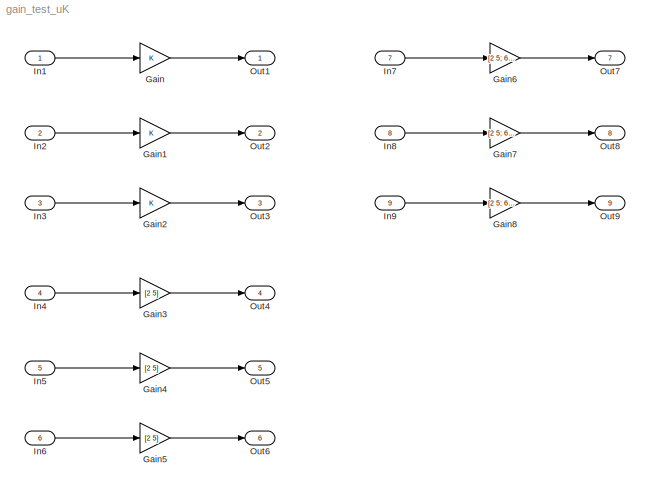
MODEL gain_test_uK
KIND model
BLOCK [Gain] Gain
  Multiplication = Matrix(u*K)
  OutDataTypeStr = Inherit: Inherit via internal rule
  ParamDataTypeStr = Inherit: Inherit via internal rule
  SID = 10
  SaturateOnIntegerOverflow = off
BLOCK [Gain] Gain1
  Multiplication = Matrix(u*K)
  OutDataTypeStr = Inherit: Inherit via internal rule
  ParamDataTypeStr = Inherit: Inherit via internal rule
  SID = 11
  SaturateOnIntegerOverflow = off
BLOCK [Gain] Gain2
  Multiplication = Matrix(u*K)
  OutDataTypeStr = Inherit: Inherit via internal rule
  ParamDataTypeStr = Inherit: Inherit via internal rule
  SID = 12
  SaturateOnIntegerOverflow = off
BLOCK [Gain] Gain3
  Gain = [2 5]
  Multiplication = Matrix(u*K)
  OutDataTypeStr = Inherit: Inherit via internal rule
  ParamDataTypeStr = Inherit: Inherit via internal rule
  SID = 13
  SaturateOnIntegerOverflow = off
BLOCK [Gain] Gain4
  Gain = [2 5]
  Multiplication = Matrix(u*K)
  OutDataTypeStr = Inherit: Inherit via internal rule
  ParamDataTypeStr = Inherit: Inherit via internal rule
  SID = 14
  SaturateOnIntegerOverflow = off
BLOCK [Gain] Gain5
  Gain = [2 5]
  Multiplication = Matrix(u*K)
  OutDataTypeStr = Inherit: Inherit via internal rule
  ParamDataTypeStr = Inherit: Inherit via internal rule
  SID = 15
  SaturateOnIntegerOverflow = off
BLOCK [Gain] Gain6
  Gain = [2 5; 6 8]
  Multiplication = Matrix(u*K)
  OutDataTypeStr = Inherit: Inherit via internal rule
  ParamDataTypeStr = Inherit: Inherit via internal rule
  SID = 16
  SaturateOnIntegerOverflow = off
BLOCK [Gain] Gain7
  Gain = [2 5; 6 8]
  Multiplication = Matrix(u*K)
  OutDataTypeStr = Inherit: Inherit via internal rule
  ParamDataTypeStr = Inherit: Inherit via internal rule
  SID = 17
  SaturateOnIntegerOverflow = off
BLOCK [Gain] Gain8
  Gain = [2 5; 6 8]
  Multiplication = Matrix(u*K)
  OutDataTypeStr = Inherit: Inherit via internal rule
  ParamDataTypeStr = Inherit: Inherit via internal rule
  SID = 18
  SaturateOnIntegerOverflow = off
BLOCK [Inport] In1
  IconDisplay = Port number
  OutDataTypeStr = double
  SID = 1
BLOCK [Inport] In2
  IconDisplay = Port number
  OutDataTypeStr = int8
  Port = 2
  SID = 2
BLOCK [Inport] In3
  IconDisplay = Port number
  OutDataTypeStr = boolean
  Port = 3
  SID = 3
BLOCK [Inport] In4
  IconDisplay = Port number
  OutDataTypeStr = double
  Port = 4
  SID = 4
BLOCK [Inport] In5
  IconDisplay = Port number
  OutDataTypeStr = int8
  Port = 5
  SID = 5
BLOCK [Inport] In6
  IconDisplay = Port number
  OutDataTypeStr = boolean
  Port = 6
  SID = 6
BLOCK [Inport] In7
  IconDisplay = Port number
  OutDataTypeStr = double
  Port = 7
  PortDimensions = [2 2]
  SID = 7
BLOCK [Inport] In8
  IconDisplay = Port number
  OutDataTypeStr = int8
  Port = 8
  PortDimensions = [2 2]
  SID = 8
BLOCK [Inport] In9
  IconDisplay = Port number
  OutDataTypeStr = boolean
  Port = 9
  PortDimensions = [2 2]
  SID = 9
BLOCK [Outport] Out1
  IconDisplay = Port number
  SID = 19
BLOCK [Outport] Out2
  IconDisplay = Port number
  Port = 2
  SID = 20
BLOCK [Outport] Out3
  IconDisplay = Port number
  Port = 3
  SID = 21
BLOCK [Outport] Out4
  IconDisplay = Port number
  Port = 4
  SID = 22
BLOCK [Outport] Out5
  IconDisplay = Port number
  Port = 5
  SID = 23
BLOCK [Outport] Out6
  IconDisplay = Port number
  Port = 6
  SID = 24
BLOCK [Outport] Out7
  IconDisplay = Port number
  Port = 7
  SID = 25
BLOCK [Outport] Out8
  IconDisplay = Port number
  Port = 8
  SID = 26
BLOCK [Outport] Out9
  IconDisplay = Port number
  Port = 9
  SID = 27
LINE Gain1:1 -> Out2:1
LINE Gain2:1 -> Out3:1
LINE Gain3:1 -> Out4:1
LINE Gain4:1 -> Out5:1
LINE Gain5:1 -> Out6:1
LINE Gain6:1 -> Out7:1
LINE Gain7:1 -> Out8:1
LINE Gain8:1 -> Out9:1
LINE Gain:1 -> Out1:1
LINE In1:1 -> Gain:1
LINE In2:1 -> Gain1:1
LINE In3:1 -> Gain2:1
LINE In4:1 -> Gain3:1
LINE In5:1 -> Gain4:1
LINE In6:1 -> Gain5:1
LINE In7:1 -> Gain6:1
LINE In8:1 -> Gain7:1
LINE In9:1 -> Gain8:1
